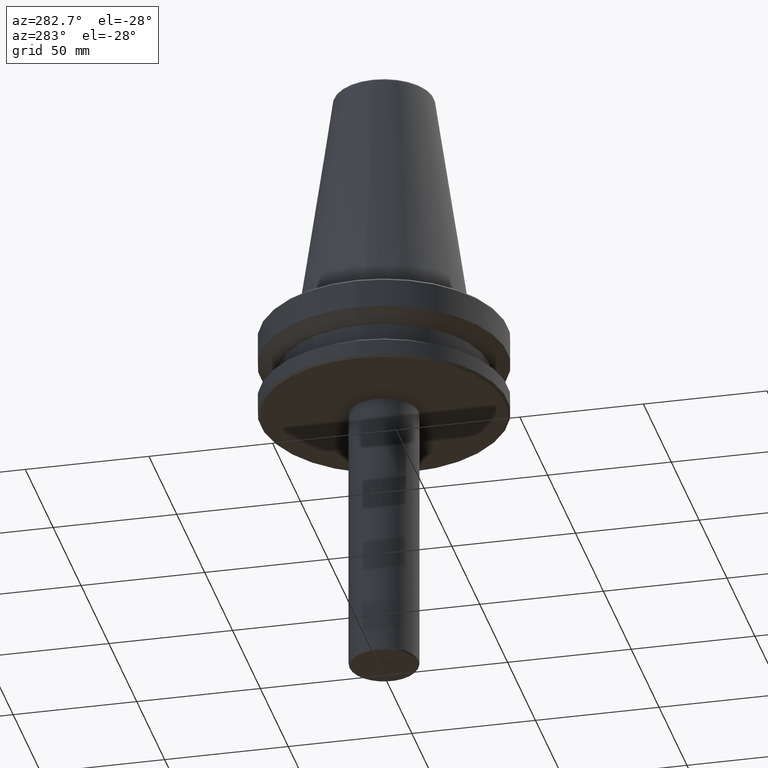
[diagram: clean part render]
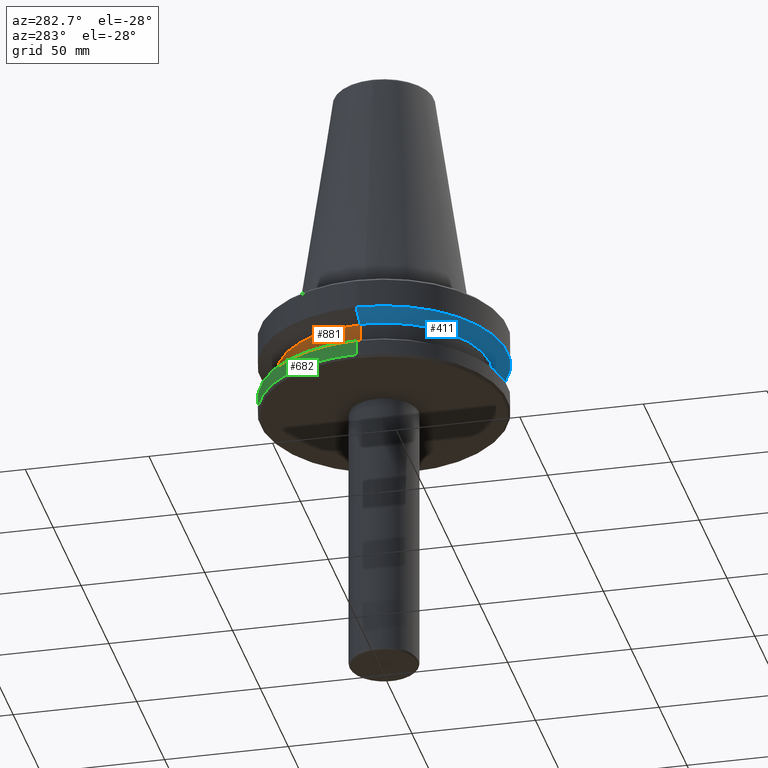
[diagram: same view with three faces highlighted in distinct colors, each labeled with its STEP entity id]
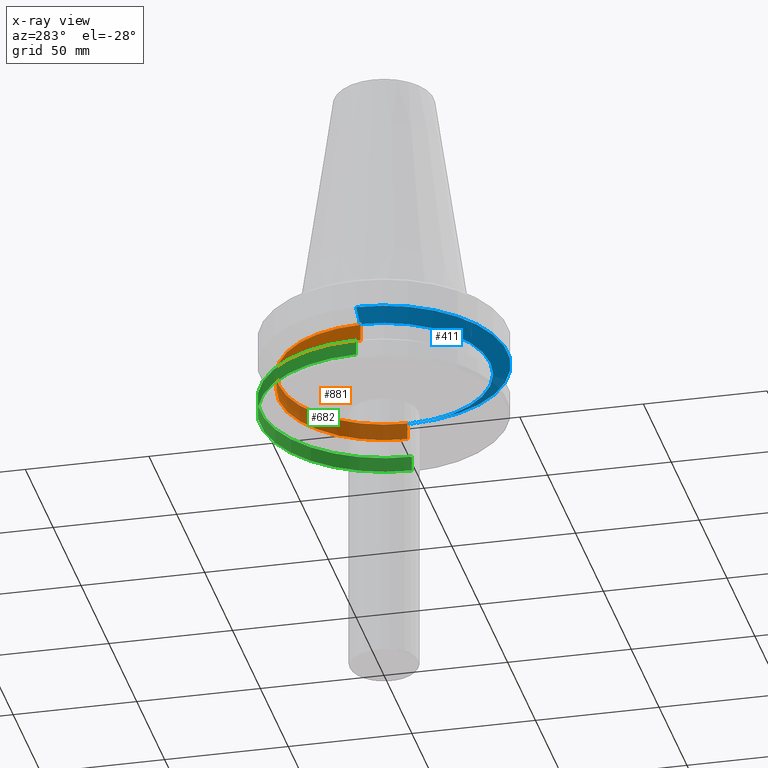
[diagram: x-ray of the same camera — body ghosted, the three highlighted faces saturated]
A machine part, auxiliary view with three faces highlighted in distinct colors.
The next image is the same camera in x-ray (body ghosted, the three faces saturated) — at least one of them is partly hidden behind the body in this view.
Their STEP definitions:

[orange] entity #881 — the highlighted cylindrical surface (partial cylindrical patch) has radius 42.5 mm, axis along (-0, -0, 1).
#65 = CARTESIAN_POINT ( 'NONE',  ( 42.50000000000000000, 0.0000000000000000000, -26.70000000000000300 ) ) ;
#80 = VERTEX_POINT ( 'NONE', #65 ) ;
#214 = CARTESIAN_POINT ( 'NONE',  ( 0.0000000000000000000, 0.0000000000000000000, 69.75694866325665100 ) ) ;
#231 = VERTEX_POINT ( 'NONE', #1059 ) ;
#288 = CARTESIAN_POINT ( 'NONE',  ( 0.0000000000000000000, 0.0000000000000000000, -19.69999999999999600 ) ) ;
#338 = EDGE_CURVE ( 'NONE', #80, #994, #588, .T. ) ;
#395 = EDGE_LOOP ( 'NONE', ( #777, #428, #962, #523 ) ) ;
#403 = DIRECTION ( 'NONE',  ( -0.0000000000000000000, -0.0000000000000000000, 1.000000000000000000 ) ) ;
#407 = CARTESIAN_POINT ( 'NONE',  ( 42.50000000000000000, 0.0000000000000000000, -19.69999999999999600 ) ) ;
#416 = EDGE_CURVE ( 'NONE', #911, #231, #969, .T. ) ;
#428 = ORIENTED_EDGE ( 'NONE', *, *, #416, .T. ) ;
#444 = CARTESIAN_POINT ( 'NONE',  ( 0.0000000000000000000, 0.0000000000000000000, -26.70000000000000300 ) ) ;
#499 = VECTOR ( 'NONE', #403, 1000.000000000000000 ) ;
#523 = ORIENTED_EDGE ( 'NONE', *, *, #338, .F. ) ;
#535 = DIRECTION ( 'NONE',  ( 1.000000000000000000, 0.0000000000000000000, 0.0000000000000000000 ) ) ;
#588 = LINE ( 'NONE', #735, #1065 ) ;
#643 = CYLINDRICAL_SURFACE ( 'NONE', #1042, 42.50000000000000000 ) ;
#644 = DIRECTION ( 'NONE',  ( -0.0000000000000000000, -0.0000000000000000000, 1.000000000000000000 ) ) ;
#663 = CARTESIAN_POINT ( 'NONE',  ( -42.50000000000000000, 5.204748896376250900E-015, -26.70000000000000300 ) ) ;
#701 = EDGE_CURVE ( 'NONE', #80, #911, #1093, .T. ) ;
#735 = CARTESIAN_POINT ( 'NONE',  ( 42.50000000000000000, 0.0000000000000000000, 69.75694866325665100 ) ) ;
#744 = FACE_OUTER_BOUND ( 'NONE', #395, .T. ) ;
#771 = CARTESIAN_POINT ( 'NONE',  ( -42.50000000000000000, 5.204748896376250900E-015, 69.75694866325665100 ) ) ;
#777 = ORIENTED_EDGE ( 'NONE', *, *, #701, .T. ) ;
#827 = CIRCLE ( 'NONE', #958, 42.50000000000000000 ) ;
#852 = DIRECTION ( 'NONE',  ( -0.0000000000000000000, -0.0000000000000000000, 1.000000000000000000 ) ) ;
#881 = ADVANCED_FACE ( 'NONE', ( #744 ), #643, .T. ) ;
#911 = VERTEX_POINT ( 'NONE', #663 ) ;
#932 = DIRECTION ( 'NONE',  ( -0.0000000000000000000, -0.0000000000000000000, 1.000000000000000000 ) ) ;
#943 = DIRECTION ( 'NONE',  ( 1.000000000000000000, 0.0000000000000000000, 0.0000000000000000000 ) ) ;
#958 = AXIS2_PLACEMENT_3D ( 'NONE', #288, #932, #1015 ) ;
#962 = ORIENTED_EDGE ( 'NONE', *, *, #1136, .F. ) ;
#969 = LINE ( 'NONE', #771, #499 ) ;
#994 = VERTEX_POINT ( 'NONE', #407 ) ;
#1015 = DIRECTION ( 'NONE',  ( 1.000000000000000000, 0.0000000000000000000, 0.0000000000000000000 ) ) ;
#1042 = AXIS2_PLACEMENT_3D ( 'NONE', #214, #852, #943 ) ;
#1059 = CARTESIAN_POINT ( 'NONE',  ( -42.50000000000000000, 5.204748896376250900E-015, -19.69999999999999600 ) ) ;
#1065 = VECTOR ( 'NONE', #644, 1000.000000000000000 ) ;
#1093 = CIRCLE ( 'NONE', #1122, 42.50000000000000000 ) ;
#1094 = DIRECTION ( 'NONE',  ( -0.0000000000000000000, -0.0000000000000000000, 1.000000000000000000 ) ) ;
#1122 = AXIS2_PLACEMENT_3D ( 'NONE', #444, #1094, #535 ) ;
#1136 = EDGE_CURVE ( 'NONE', #994, #231, #827, .T. ) ;

[blue] entity #411 — the highlighted conical surface has half-angle 60 deg.
#60 = CARTESIAN_POINT ( 'NONE',  ( 50.00000000000000000, 0.0000000000000000000, -15.70022000322676600 ) ) ;
#70 = CARTESIAN_POINT ( 'NONE',  ( 0.0000000000000000000, 0.0000000000000000000, -15.70022000322676600 ) ) ;
#109 = CARTESIAN_POINT ( 'NONE',  ( 43.07217782649103600, 0.0000000000000000000, -19.69999999999999600 ) ) ;
#113 = ORIENTED_EDGE ( 'NONE', *, *, #1040, .T. ) ;
#124 = EDGE_LOOP ( 'NONE', ( #251, #113, #636, #431 ) ) ;
#126 = VERTEX_POINT ( 'NONE', #592 ) ;
#129 = DIRECTION ( 'NONE',  ( 1.000000000000000000, 0.0000000000000000000, 0.0000000000000000000 ) ) ;
#151 = DIRECTION ( 'NONE',  ( 1.000000000000000000, 0.0000000000000000000, 0.0000000000000000000 ) ) ;
#162 = DIRECTION ( 'NONE',  ( -0.0000000000000000000, -0.0000000000000000000, 1.000000000000000000 ) ) ;
#166 = EDGE_CURVE ( 'NONE', #317, #126, #359, .T. ) ;
#178 = EDGE_CURVE ( 'NONE', #599, #126, #1134, .T. ) ;
#226 = VECTOR ( 'NONE', #1143, 1000.000000000000100 ) ;
#251 = ORIENTED_EDGE ( 'NONE', *, *, #1154, .F. ) ;
#317 = VERTEX_POINT ( 'NONE', #978 ) ;
#359 = CIRCLE ( 'NONE', #427, 50.00000000000000000 ) ;
#411 = ADVANCED_FACE ( 'NONE', ( #1083 ), #500, .T. ) ;
#427 = AXIS2_PLACEMENT_3D ( 'NONE', #70, #680, #151 ) ;
#431 = ORIENTED_EDGE ( 'NONE', *, *, #166, .F. ) ;
#455 = AXIS2_PLACEMENT_3D ( 'NONE', #691, #162, #790 ) ;
#500 = CONICAL_SURFACE ( 'NONE', #647, 50.00000000000000000, 1.047197551196601000 ) ;
#551 = DIRECTION ( 'NONE',  ( -0.8660254037844401500, 1.060575238724908800E-016, 0.4999999999999971700 ) ) ;
#592 = CARTESIAN_POINT ( 'NONE',  ( 50.00000000000000000, 0.0000000000000000000, -15.70022000322676600 ) ) ;
#599 = VERTEX_POINT ( 'NONE', #109 ) ;
#636 = ORIENTED_EDGE ( 'NONE', *, *, #178, .T. ) ;
#647 = AXIS2_PLACEMENT_3D ( 'NONE', #941, #847, #129 ) ;
#655 = LINE ( 'NONE', #1108, #743 ) ;
#680 = DIRECTION ( 'NONE',  ( -0.0000000000000000000, -0.0000000000000000000, 1.000000000000000000 ) ) ;
#691 = CARTESIAN_POINT ( 'NONE',  ( 0.0000000000000000000, 0.0000000000000000000, -19.69999999999999600 ) ) ;
#743 = VECTOR ( 'NONE', #551, 1000.000000000000100 ) ;
#786 = CARTESIAN_POINT ( 'NONE',  ( -43.07217782649103600, 5.699027233244276000E-015, -19.69999999999999600 ) ) ;
#790 = DIRECTION ( 'NONE',  ( 1.000000000000000000, 0.0000000000000000000, 0.0000000000000000000 ) ) ;
#847 = DIRECTION ( 'NONE',  ( -0.0000000000000000000, -0.0000000000000000000, 1.000000000000000000 ) ) ;
#876 = CIRCLE ( 'NONE', #455, 43.07217782649103600 ) ;
#941 = CARTESIAN_POINT ( 'NONE',  ( 0.0000000000000000000, 0.0000000000000000000, -15.70022000322676600 ) ) ;
#978 = CARTESIAN_POINT ( 'NONE',  ( -50.00000000000000000, 6.123233995736766100E-015, -15.70022000322676600 ) ) ;
#1040 = EDGE_CURVE ( 'NONE', #1051, #599, #876, .T. ) ;
#1051 = VERTEX_POINT ( 'NONE', #786 ) ;
#1083 = FACE_OUTER_BOUND ( 'NONE', #124, .T. ) ;
#1108 = CARTESIAN_POINT ( 'NONE',  ( -50.00000000000000000, 6.123233995736766100E-015, -15.70022000322676600 ) ) ;
#1134 = LINE ( 'NONE', #60, #226 ) ;
#1143 = DIRECTION ( 'NONE',  ( 0.8660254037844401500, 0.0000000000000000000, 0.4999999999999971700 ) ) ;
#1154 = EDGE_CURVE ( 'NONE', #1051, #317, #655, .T. ) ;

[green] entity #682 — the highlighted cylindrical surface (partial cylindrical patch) has radius 50 mm, axis along (-0, -0, 1).
#44 = ORIENTED_EDGE ( 'NONE', *, *, #433, .T. ) ;
#54 = EDGE_CURVE ( 'NONE', #441, #79, #1120, .T. ) ;
#67 = CARTESIAN_POINT ( 'NONE',  ( 0.0000000000000000000, 0.0000000000000000000, -36.83431457505076200 ) ) ;
#78 = AXIS2_PLACEMENT_3D ( 'NONE', #180, #353, #1001 ) ;
#79 = VERTEX_POINT ( 'NONE', #959 ) ;
#149 = DIRECTION ( 'NONE',  ( 1.000000000000000000, 0.0000000000000000000, 0.0000000000000000000 ) ) ;
#180 = CARTESIAN_POINT ( 'NONE',  ( 0.0000000000000000000, 0.0000000000000000000, 69.75694866325665100 ) ) ;
#213 = CARTESIAN_POINT ( 'NONE',  ( -50.00000000000000000, 6.123233995736766100E-015, 69.75694866325665100 ) ) ;
#280 = DIRECTION ( 'NONE',  ( -0.0000000000000000000, -0.0000000000000000000, 1.000000000000000000 ) ) ;
#324 = CARTESIAN_POINT ( 'NONE',  ( 50.00000000000000000, 0.0000000000000000000, -36.83431457505076200 ) ) ;
#353 = DIRECTION ( 'NONE',  ( -0.0000000000000000000, -0.0000000000000000000, 1.000000000000000000 ) ) ;
#357 = CARTESIAN_POINT ( 'NONE',  ( 50.00000000000000000, 0.0000000000000000000, 69.75694866325665100 ) ) ;
#433 = EDGE_CURVE ( 'NONE', #1005, #984, #778, .T. ) ;
#441 = VERTEX_POINT ( 'NONE', #871 ) ;
#497 = CARTESIAN_POINT ( 'NONE',  ( -50.00000000000000000, 6.123233995736766100E-015, -36.83431457505076200 ) ) ;
#565 = ORIENTED_EDGE ( 'NONE', *, *, #54, .F. ) ;
#678 = DIRECTION ( 'NONE',  ( -0.0000000000000000000, -0.0000000000000000000, 1.000000000000000000 ) ) ;
#682 = ADVANCED_FACE ( 'NONE', ( #1016 ), #1041, .T. ) ;
#695 = ORIENTED_EDGE ( 'NONE', *, *, #714, .F. ) ;
#707 = AXIS2_PLACEMENT_3D ( 'NONE', #67, #678, #149 ) ;
#714 = EDGE_CURVE ( 'NONE', #1005, #441, #838, .T. ) ;
#721 = ORIENTED_EDGE ( 'NONE', *, *, #810, .T. ) ;
#778 = CIRCLE ( 'NONE', #707, 50.00000000000000000 ) ;
#810 = EDGE_CURVE ( 'NONE', #984, #79, #872, .T. ) ;
#823 = AXIS2_PLACEMENT_3D ( 'NONE', #828, #280, #923 ) ;
#828 = CARTESIAN_POINT ( 'NONE',  ( 0.0000000000000000000, 0.0000000000000000000, -30.69977999677324500 ) ) ;
#837 = VECTOR ( 'NONE', #849, 1000.000000000000000 ) ;
#838 = LINE ( 'NONE', #357, #1155 ) ;
#849 = DIRECTION ( 'NONE',  ( -0.0000000000000000000, -0.0000000000000000000, 1.000000000000000000 ) ) ;
#871 = CARTESIAN_POINT ( 'NONE',  ( 50.00000000000000000, 0.0000000000000000000, -30.69977999677324500 ) ) ;
#872 = LINE ( 'NONE', #213, #837 ) ;
#897 = EDGE_LOOP ( 'NONE', ( #44, #721, #565, #695 ) ) ;
#923 = DIRECTION ( 'NONE',  ( 1.000000000000000000, 0.0000000000000000000, 0.0000000000000000000 ) ) ;
#959 = CARTESIAN_POINT ( 'NONE',  ( -50.00000000000000000, 6.123233995736766100E-015, -30.69977999677324500 ) ) ;
#984 = VERTEX_POINT ( 'NONE', #497 ) ;
#1001 = DIRECTION ( 'NONE',  ( 1.000000000000000000, 0.0000000000000000000, 0.0000000000000000000 ) ) ;
#1004 = DIRECTION ( 'NONE',  ( -0.0000000000000000000, -0.0000000000000000000, 1.000000000000000000 ) ) ;
#1005 = VERTEX_POINT ( 'NONE', #324 ) ;
#1016 = FACE_OUTER_BOUND ( 'NONE', #897, .T. ) ;
#1041 = CYLINDRICAL_SURFACE ( 'NONE', #78, 50.00000000000000000 ) ;
#1120 = CIRCLE ( 'NONE', #823, 50.00000000000000000 ) ;
#1155 = VECTOR ( 'NONE', #1004, 1000.000000000000000 ) ;